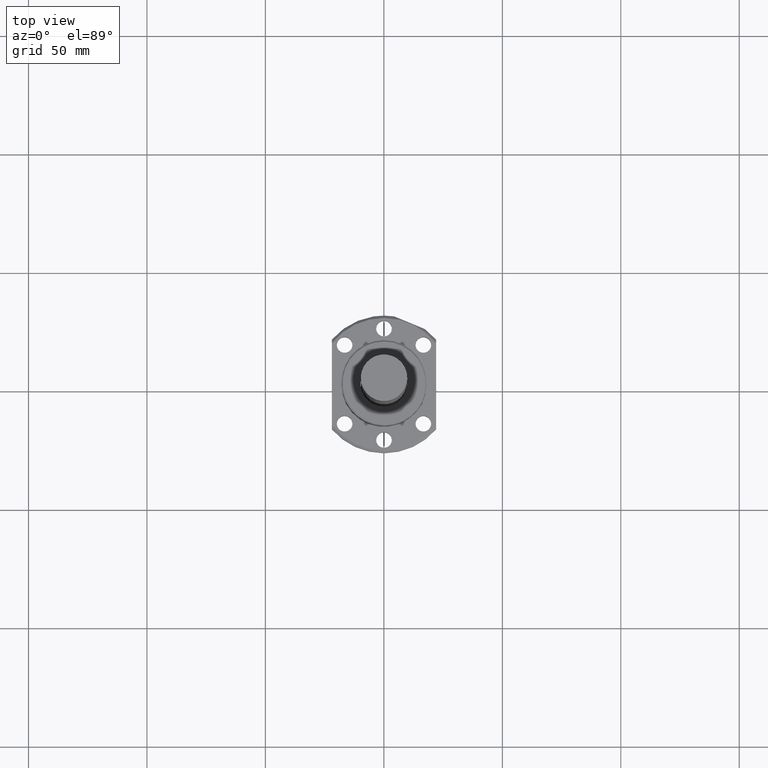
[diagram: clean part render]
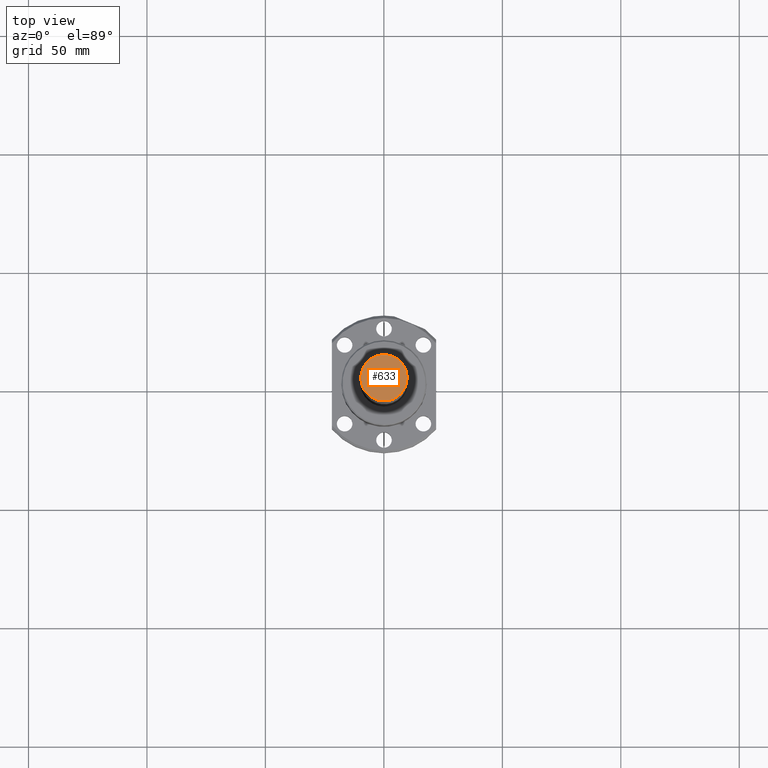
[diagram: same view with one face highlighted and labeled with its STEP entity id]
A machine part, top view. The second image highlights one B-rep face of the part: STEP entity #633.
In plain terms, the highlighted planar face has unit normal (0, 0, 1).
Its self-contained STEP definition (entity closure, byte-faithful):
#68 = EDGE_CURVE ( 'NONE', #170, #962, #663, .T. ) ;
#114 = DIRECTION ( 'NONE',  ( 0.0000000000000000000, 0.0000000000000000000, 1.000000000000000000 ) ) ;
#170 = VERTEX_POINT ( 'NONE', #1179 ) ;
#175 = AXIS2_PLACEMENT_3D ( 'NONE', #1667, #1484, #1309 ) ;
#326 = FACE_OUTER_BOUND ( 'NONE', #874, .T. ) ;
#386 = CIRCLE ( 'NONE', #1257, 9.800000000000000700 ) ;
#496 = ORIENTED_EDGE ( 'NONE', *, *, #1069, .T. ) ;
#552 = CARTESIAN_POINT ( 'NONE',  ( 0.0000000000000000000, 0.0000000000000000000, 0.0000000000000000000 ) ) ;
#595 = CARTESIAN_POINT ( 'NONE',  ( -9.800000000000000700, 1.200153863164406300E-015, 0.0000000000000000000 ) ) ;
#633 = ADVANCED_FACE ( 'NONE', ( #326 ), #1843, .T. ) ;
#663 = CIRCLE ( 'NONE', #1297, 9.800000000000000700 ) ;
#722 = ORIENTED_EDGE ( 'NONE', *, *, #68, .T. ) ;
#735 = DIRECTION ( 'NONE',  ( 0.0000000000000000000, 0.0000000000000000000, 1.000000000000000000 ) ) ;
#874 = EDGE_LOOP ( 'NONE', ( #722, #496 ) ) ;
#936 = DIRECTION ( 'NONE',  ( 1.000000000000000000, 0.0000000000000000000, 0.0000000000000000000 ) ) ;
#962 = VERTEX_POINT ( 'NONE', #595 ) ;
#1069 = EDGE_CURVE ( 'NONE', #962, #170, #386, .T. ) ;
#1092 = CARTESIAN_POINT ( 'NONE',  ( 0.0000000000000000000, 0.0000000000000000000, 0.0000000000000000000 ) ) ;
#1179 = CARTESIAN_POINT ( 'NONE',  ( 9.800000000000000700, 0.0000000000000000000, 0.0000000000000000000 ) ) ;
#1257 = AXIS2_PLACEMENT_3D ( 'NONE', #1092, #114, #1784 ) ;
#1297 = AXIS2_PLACEMENT_3D ( 'NONE', #552, #735, #936 ) ;
#1309 = DIRECTION ( 'NONE',  ( 1.000000000000000000, 0.0000000000000000000, 0.0000000000000000000 ) ) ;
#1484 = DIRECTION ( 'NONE',  ( 0.0000000000000000000, 0.0000000000000000000, 1.000000000000000000 ) ) ;
#1667 = CARTESIAN_POINT ( 'NONE',  ( -9.917600000000000200, -9.917600000000000200, 0.0000000000000000000 ) ) ;
#1784 = DIRECTION ( 'NONE',  ( 1.000000000000000000, 0.0000000000000000000, 0.0000000000000000000 ) ) ;
#1843 = PLANE ( 'NONE',  #175 ) ;